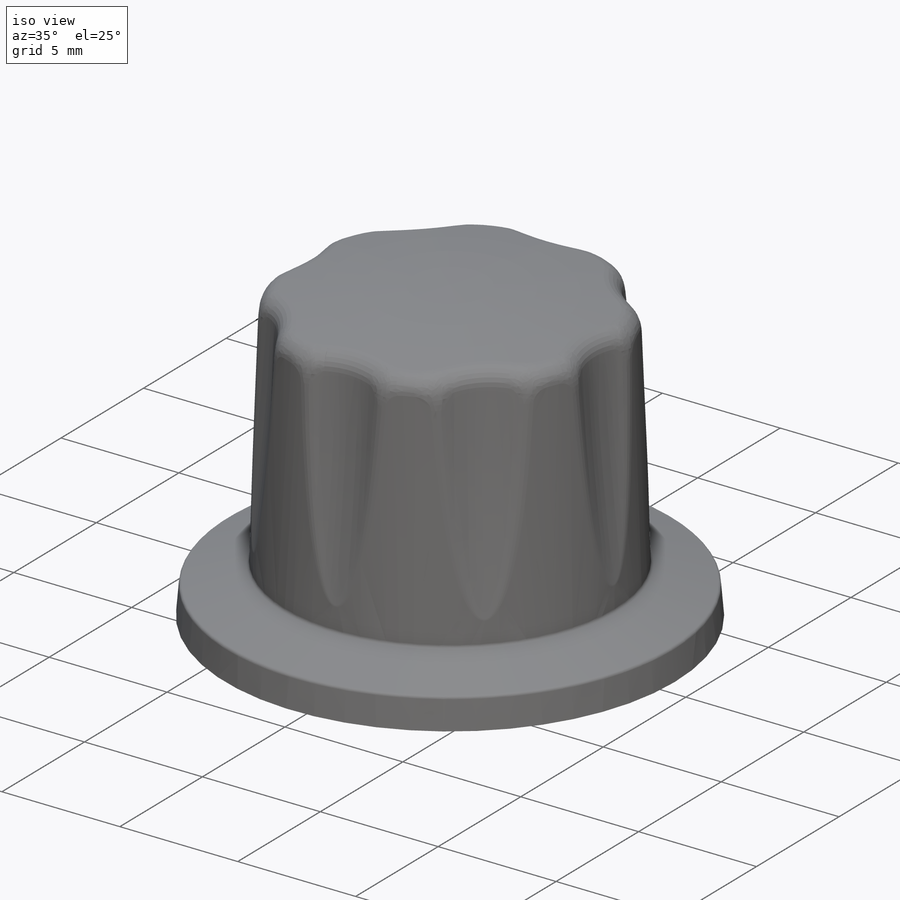
[diagram: iso view]
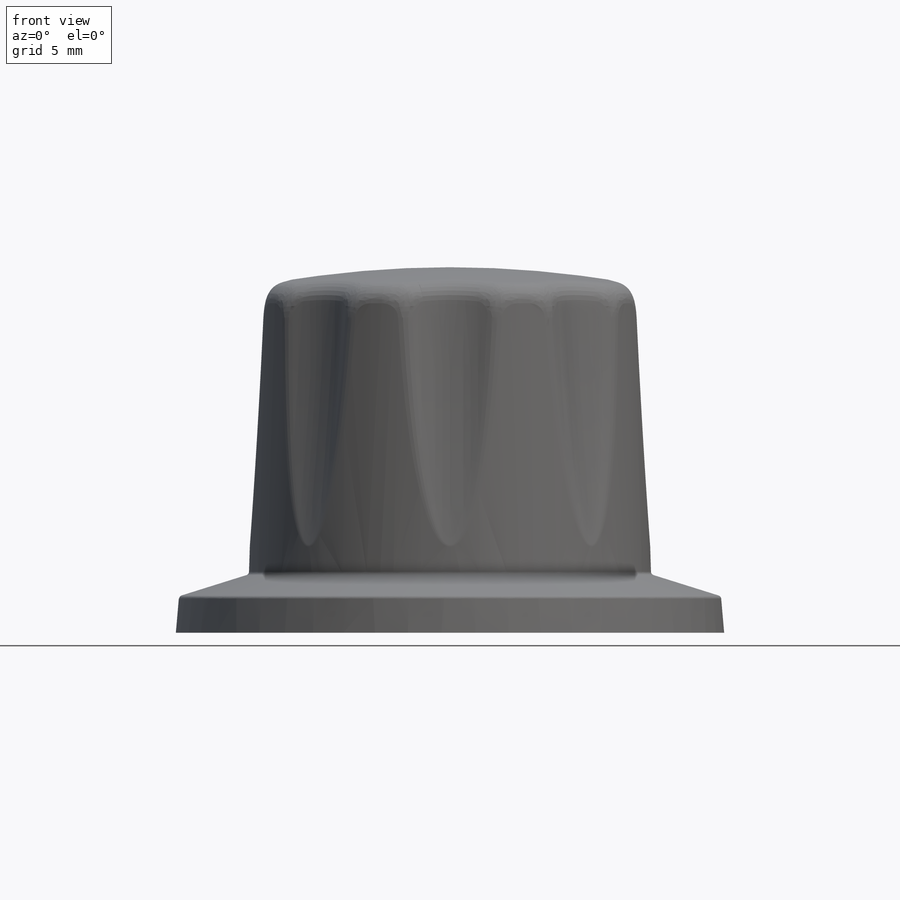
[diagram: front view]
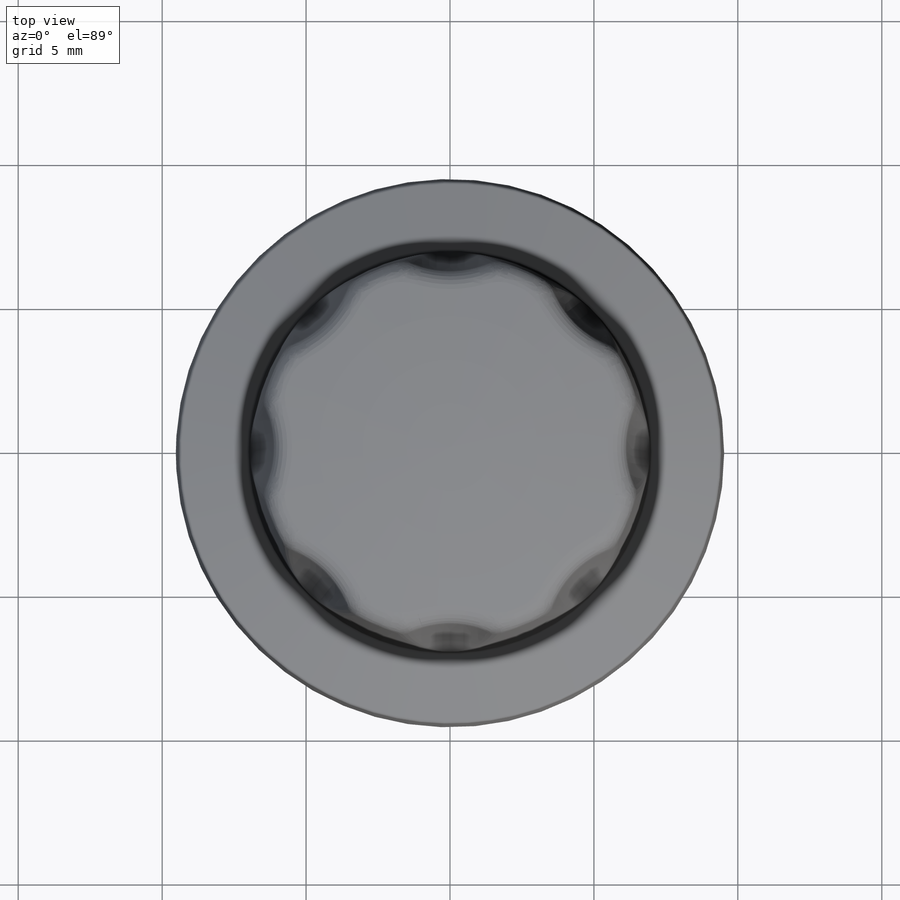
[diagram: top view]
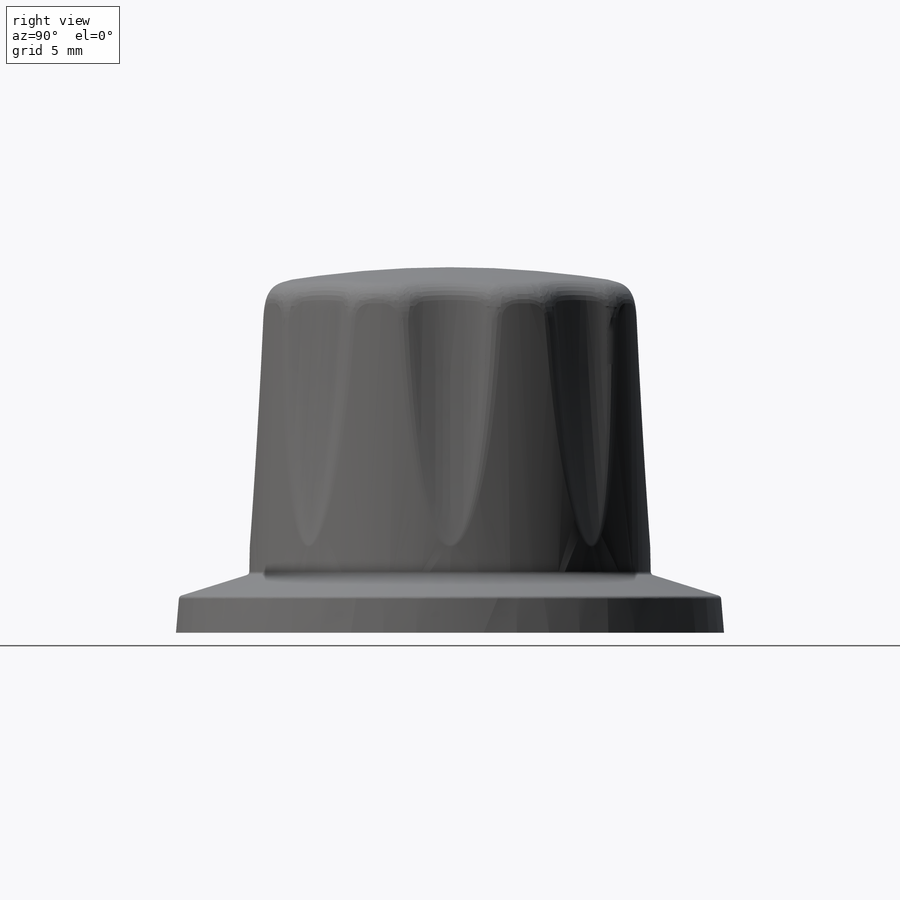
[diagram: right view]
SOLIDWORKS PART (.sldprt)
format: sldprt  version: not decoded by parser v0  size: 904,192 bytes
history: native  units: mm
features: sketch x3, plane x2, fillet x2, material x1, revolve x1, sweep x1, pattern_circular x1 (+13 scaffold rows collapsed)
feature tree (24):
  scaffold x13  (default folders/planes/origin — collapsed)
  material  "Material <not specified>"
  sketch  "Sketch1"  dims[c1.D1=12.7mm c1.D2=13.335mm c1.D3=13.97mm c1.D4=1.27mm c1.D5=2.032mm c1.D6=19.05mm c1.D7=1.27mm c2.D7=95.0deg c2.D8=12.065mm]
  revolve  "Revolve1"  Angle=360deg
  plane  "Plane1"
  plane  "Plane2"  Offset=0.508mm
  sketch  "Sketch3"
  sketch  "Sketch5"
  sweep  "Cut-Sweep1"
  pattern_circular  "CirPattern2"  Count=8 Angle=360deg
  fillet  "Fillet4"  Radius=0.762mm
  fillet  "Fillet5"  Radius=0.127mm
decode coverage: 5 of 8 modeling features carry decoded parameters
note: suppression state not decoded; provenance and decode notes live in map.json
